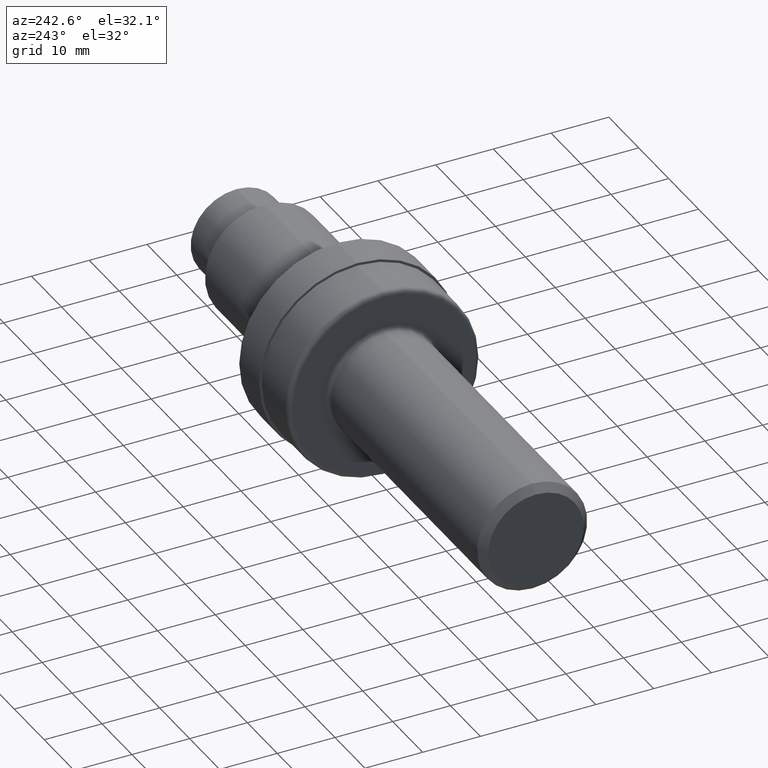
[diagram: clean part render]
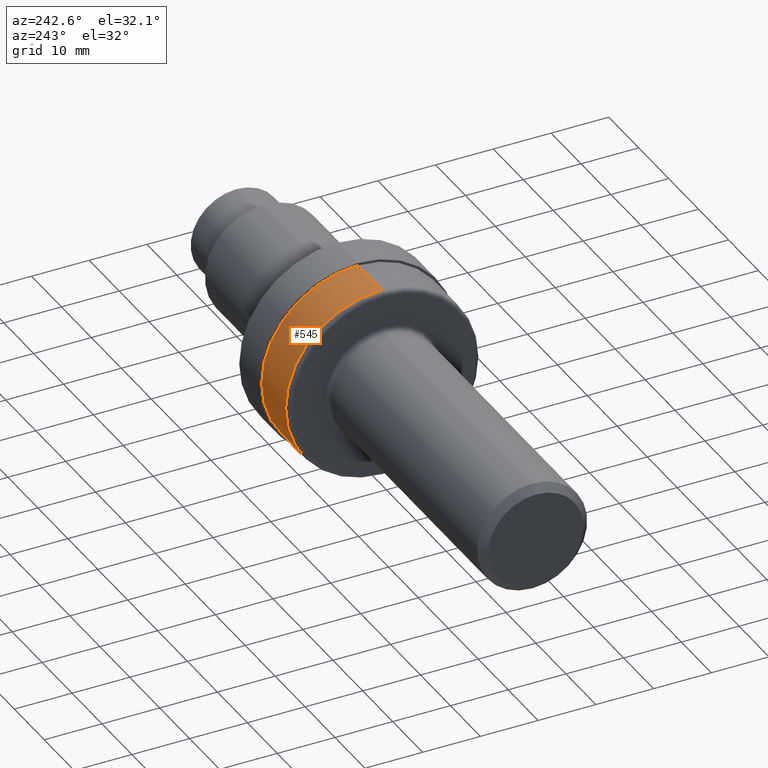
[diagram: same view with one face highlighted and labeled with its STEP entity id]
A machine part, auxiliary view. The second image highlights one B-rep face of the part: STEP entity #545.
In plain terms, the highlighted cylindrical surface (partial cylindrical patch) has radius 16.637 mm, axis along (-1, -0, -0).
Its self-contained STEP definition (entity closure, byte-faithful):
#24 = LINE ( 'NONE', #123, #497 ) ;
#57 = CARTESIAN_POINT ( 'NONE',  ( 2.346000000000000085, 8.021436534415163002E-17, -0.6550000000000000266 ) ) ;
#121 = CYLINDRICAL_SURFACE ( 'NONE', #667, 0.6550000000000000266 ) ;
#123 = CARTESIAN_POINT ( 'NONE',  ( 0.0000000000000000000, 8.021436534415163002E-17, -0.6550000000000000266 ) ) ;
#125 = CARTESIAN_POINT ( 'NONE',  ( 2.029999999999999805, 8.021436534415163002E-17, -0.6550000000000000266 ) ) ;
#127 = EDGE_CURVE ( 'NONE', #730, #433, #191, .T. ) ;
#191 = CIRCLE ( 'NONE', #674, 0.6550000000000000266 ) ;
#200 = EDGE_CURVE ( 'NONE', #429, #730, #752, .T. ) ;
#303 = CARTESIAN_POINT ( 'NONE',  ( 2.029999999999999805, 0.0000000000000000000, 0.0000000000000000000 ) ) ;
#311 = CARTESIAN_POINT ( 'NONE',  ( 2.346000000000000085, 0.0000000000000000000, 0.0000000000000000000 ) ) ;
#314 = DIRECTION ( 'NONE',  ( 0.0000000000000000000, 0.0000000000000000000, 1.000000000000000000 ) ) ;
#328 = EDGE_CURVE ( 'NONE', #594, #433, #24, .T. ) ;
#379 = DIRECTION ( 'NONE',  ( 0.0000000000000000000, 0.0000000000000000000, 1.000000000000000000 ) ) ;
#427 = CIRCLE ( 'NONE', #438, 0.6550000000000000266 ) ;
#429 = VERTEX_POINT ( 'NONE', #476 ) ;
#433 = VERTEX_POINT ( 'NONE', #125 ) ;
#438 = AXIS2_PLACEMENT_3D ( 'NONE', #311, #779, #847 ) ;
#454 = ORIENTED_EDGE ( 'NONE', *, *, #328, .T. ) ;
#476 = CARTESIAN_POINT ( 'NONE',  ( 2.346000000000000085, 0.0000000000000000000, 0.6550000000000000266 ) ) ;
#497 = VECTOR ( 'NONE', #597, 39.37007874015748143 ) ;
#498 = FACE_OUTER_BOUND ( 'NONE', #507, .T. ) ;
#507 = EDGE_LOOP ( 'NONE', ( #596, #454, #766, #623 ) ) ;
#513 = DIRECTION ( 'NONE',  ( -1.000000000000000000, -0.0000000000000000000, -0.0000000000000000000 ) ) ;
#545 = ADVANCED_FACE ( 'NONE', ( #498 ), #121, .T. ) ;
#576 = VECTOR ( 'NONE', #583, 39.37007874015748143 ) ;
#583 = DIRECTION ( 'NONE',  ( -1.000000000000000000, -0.0000000000000000000, -0.0000000000000000000 ) ) ;
#594 = VERTEX_POINT ( 'NONE', #57 ) ;
#596 = ORIENTED_EDGE ( 'NONE', *, *, #806, .T. ) ;
#597 = DIRECTION ( 'NONE',  ( -1.000000000000000000, -0.0000000000000000000, -0.0000000000000000000 ) ) ;
#623 = ORIENTED_EDGE ( 'NONE', *, *, #200, .F. ) ;
#658 = CARTESIAN_POINT ( 'NONE',  ( 2.029999999999999805, 0.0000000000000000000, 0.6550000000000000266 ) ) ;
#667 = AXIS2_PLACEMENT_3D ( 'NONE', #721, #513, #314 ) ;
#674 = AXIS2_PLACEMENT_3D ( 'NONE', #303, #770, #379 ) ;
#721 = CARTESIAN_POINT ( 'NONE',  ( 0.0000000000000000000, 0.0000000000000000000, 0.0000000000000000000 ) ) ;
#730 = VERTEX_POINT ( 'NONE', #658 ) ;
#752 = LINE ( 'NONE', #780, #576 ) ;
#766 = ORIENTED_EDGE ( 'NONE', *, *, #127, .F. ) ;
#770 = DIRECTION ( 'NONE',  ( -1.000000000000000000, -0.0000000000000000000, -0.0000000000000000000 ) ) ;
#779 = DIRECTION ( 'NONE',  ( -1.000000000000000000, -0.0000000000000000000, -0.0000000000000000000 ) ) ;
#780 = CARTESIAN_POINT ( 'NONE',  ( 0.0000000000000000000, 0.0000000000000000000, 0.6550000000000000266 ) ) ;
#806 = EDGE_CURVE ( 'NONE', #429, #594, #427, .T. ) ;
#847 = DIRECTION ( 'NONE',  ( 0.0000000000000000000, 0.0000000000000000000, 1.000000000000000000 ) ) ;